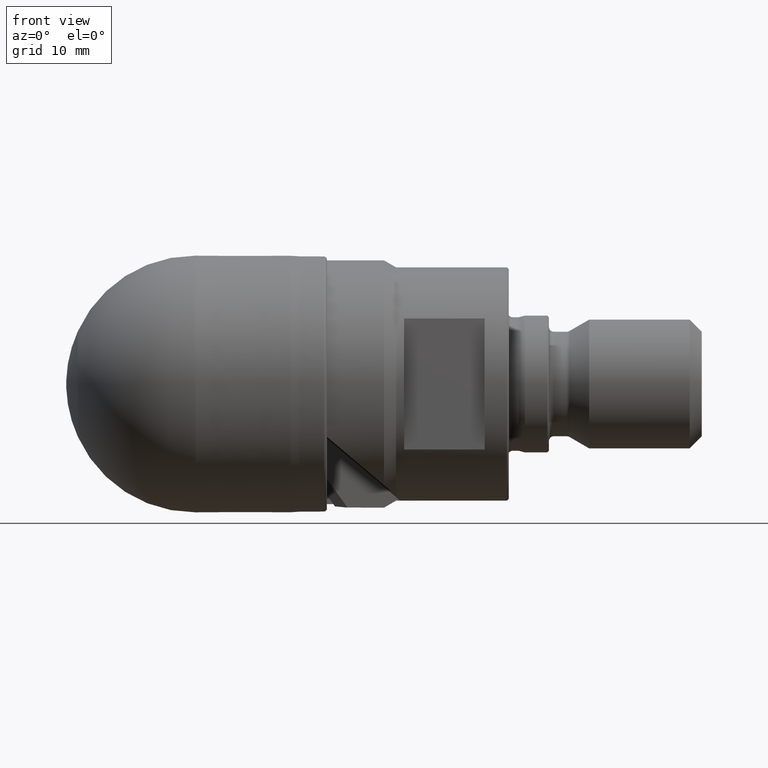
[diagram: clean part render]
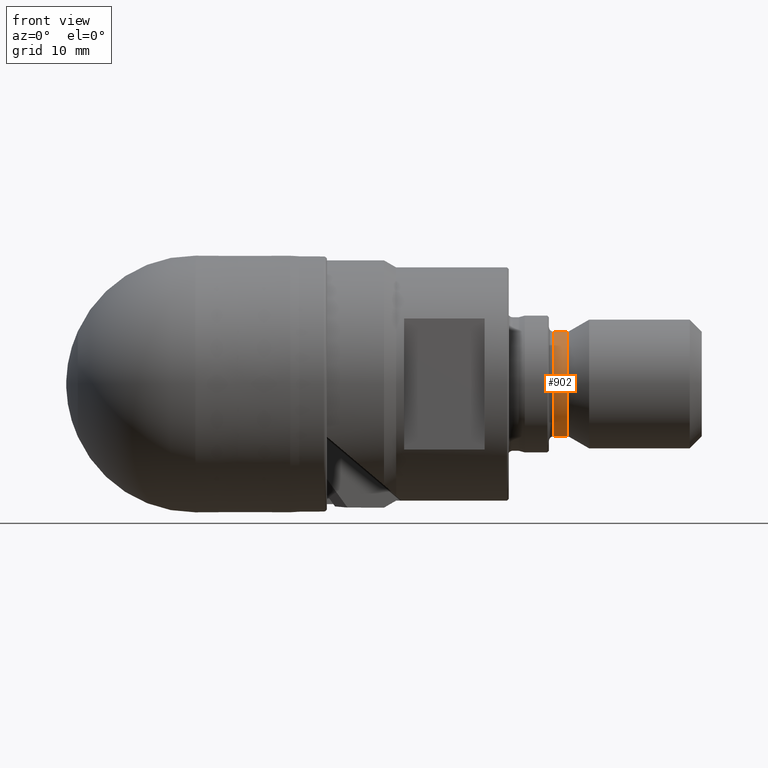
[diagram: same view with one face highlighted and labeled with its STEP entity id]
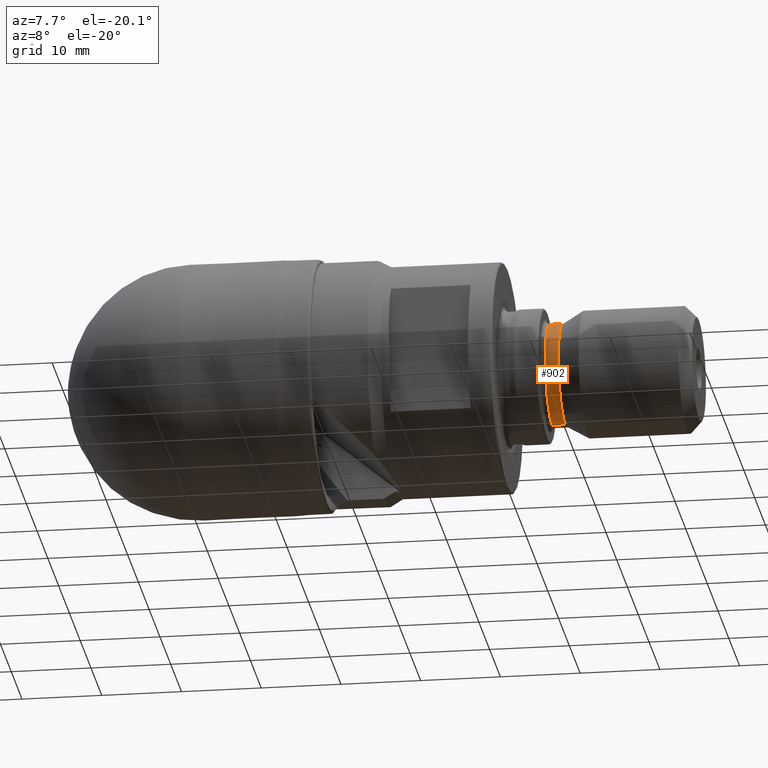
[diagram: same view with one face highlighted and labeled with its STEP entity id]
A machine part, front view. The second image highlights one B-rep face of the part: STEP entity #902.
A second angle (auxiliary view) of the same face is appended — the face is thin or edge-on in the first view.
In plain terms, the highlighted cylindrical surface (partial cylindrical patch) has radius 6.5 mm, axis along (-1, 0, 0).
Its self-contained STEP definition (entity closure, byte-faithful):
#148 = CIRCLE ( 'NONE', #4751, 6.499999999999999112 ) ;
#307 = EDGE_CURVE ( 'NONE', #3893, #3028, #3618, .T. ) ;
#576 = CARTESIAN_POINT ( 'NONE',  ( -4.762142644779060241, 0.0000000000000000000, 6.499999999999997335 ) ) ;
#902 = ADVANCED_FACE ( 'NONE', ( #4775 ), #3245, .T. ) ;
#906 = LINE ( 'NONE', #1296, #1303 ) ;
#1049 = AXIS2_PLACEMENT_3D ( 'NONE', #3923, #2503, #2772 ) ;
#1296 = CARTESIAN_POINT ( 'NONE',  ( -4.762142644779060241, 7.960204194457792519E-16, -6.499999999999997335 ) ) ;
#1303 = VECTOR ( 'NONE', #3323, 1000.000000000000000 ) ;
#1731 = ORIENTED_EDGE ( 'NONE', *, *, #3938, .F. ) ;
#2105 = DIRECTION ( 'NONE',  ( -1.000000000000000000, 0.0000000000000000000, 0.0000000000000000000 ) ) ;
#2197 = VERTEX_POINT ( 'NONE', #4042 ) ;
#2222 = AXIS2_PLACEMENT_3D ( 'NONE', #4752, #2868, #4383 ) ;
#2240 = VERTEX_POINT ( 'NONE', #4544 ) ;
#2257 = ORIENTED_EDGE ( 'NONE', *, *, #2558, .F. ) ;
#2305 = VECTOR ( 'NONE', #2105, 1000.000000000000000 ) ;
#2503 = DIRECTION ( 'NONE',  ( -1.000000000000000000, 0.0000000000000000000, 0.0000000000000000000 ) ) ;
#2558 = EDGE_CURVE ( 'NONE', #2197, #3028, #148, .T. ) ;
#2720 = DIRECTION ( 'NONE',  ( 0.0000000000000000000, 0.0000000000000000000, 1.000000000000000000 ) ) ;
#2772 = DIRECTION ( 'NONE',  ( 0.0000000000000000000, 0.0000000000000000000, 1.000000000000000000 ) ) ;
#2868 = DIRECTION ( 'NONE',  ( -1.000000000000000000, 0.0000000000000000000, 0.0000000000000000000 ) ) ;
#3028 = VERTEX_POINT ( 'NONE', #4861 ) ;
#3156 = CARTESIAN_POINT ( 'NONE',  ( 54.61559800999998515, 0.0000000000000000000, 0.0000000000000000000 ) ) ;
#3185 = ORIENTED_EDGE ( 'NONE', *, *, #307, .T. ) ;
#3238 = EDGE_CURVE ( 'NONE', #2240, #3893, #4306, .T. ) ;
#3245 = CYLINDRICAL_SURFACE ( 'NONE', #2222, 6.499999999999997335 ) ;
#3323 = DIRECTION ( 'NONE',  ( -1.000000000000000000, 0.0000000000000000000, 0.0000000000000000000 ) ) ;
#3371 = ORIENTED_EDGE ( 'NONE', *, *, #3238, .T. ) ;
#3480 = DIRECTION ( 'NONE',  ( -1.000000000000000000, 0.0000000000000000000, 0.0000000000000000000 ) ) ;
#3485 = CARTESIAN_POINT ( 'NONE',  ( 56.25675228318800691, 0.0000000000000000000, 6.499999999999994671 ) ) ;
#3618 = LINE ( 'NONE', #576, #2305 ) ;
#3893 = VERTEX_POINT ( 'NONE', #3485 ) ;
#3923 = CARTESIAN_POINT ( 'NONE',  ( 56.25675228318800691, 0.0000000000000000000, 0.0000000000000000000 ) ) ;
#3938 = EDGE_CURVE ( 'NONE', #2240, #2197, #906, .T. ) ;
#4042 = CARTESIAN_POINT ( 'NONE',  ( 54.61559800999998515, 8.327598234202001119E-16, -6.500000000000000000 ) ) ;
#4306 = CIRCLE ( 'NONE', #1049, 6.499999999999994671 ) ;
#4383 = DIRECTION ( 'NONE',  ( 0.0000000000000000000, 0.0000000000000000000, 1.000000000000000000 ) ) ;
#4544 = CARTESIAN_POINT ( 'NONE',  ( 56.25675228318800691, 7.960204194457791533E-16, -6.499999999999994671 ) ) ;
#4684 = EDGE_LOOP ( 'NONE', ( #1731, #3371, #3185, #2257 ) ) ;
#4751 = AXIS2_PLACEMENT_3D ( 'NONE', #3156, #3480, #2720 ) ;
#4752 = CARTESIAN_POINT ( 'NONE',  ( -4.762142644779060241, 0.0000000000000000000, 0.0000000000000000000 ) ) ;
#4775 = FACE_OUTER_BOUND ( 'NONE', #4684, .T. ) ;
#4861 = CARTESIAN_POINT ( 'NONE',  ( 54.61559800999998515, 0.0000000000000000000, 6.499999999999999112 ) ) ;